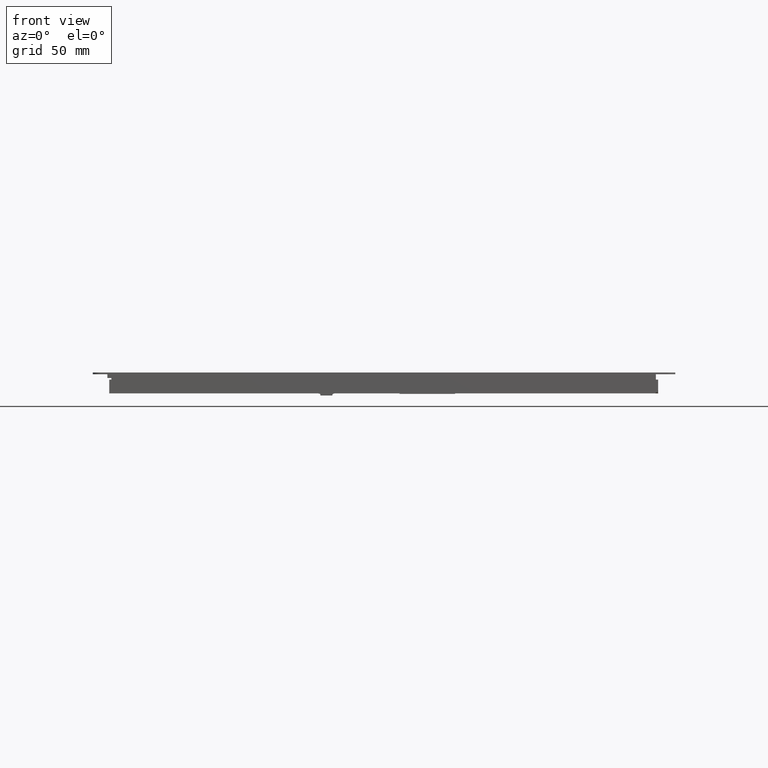
[diagram: clean part render]
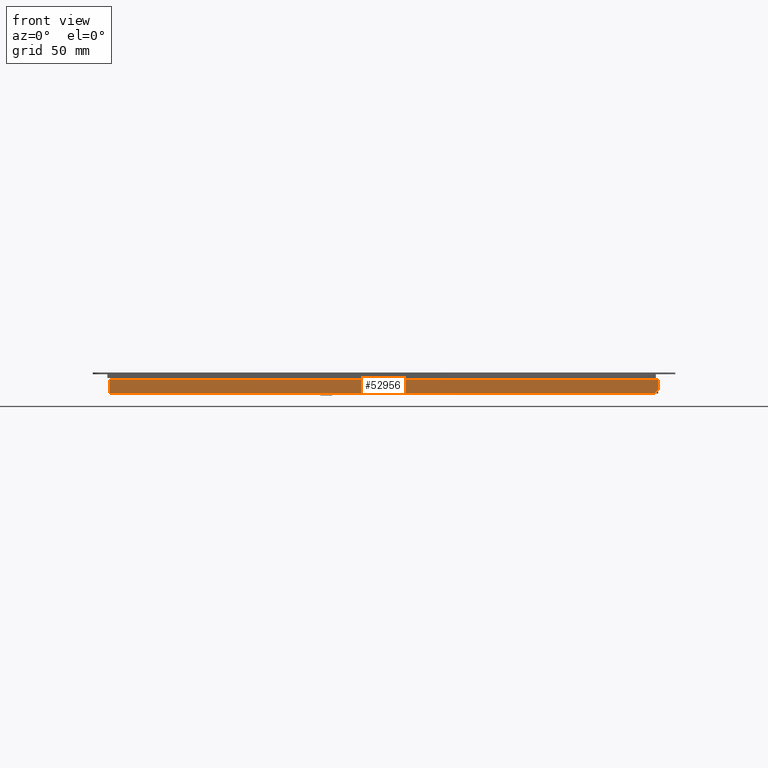
[diagram: same view with one face highlighted and labeled with its STEP entity id]
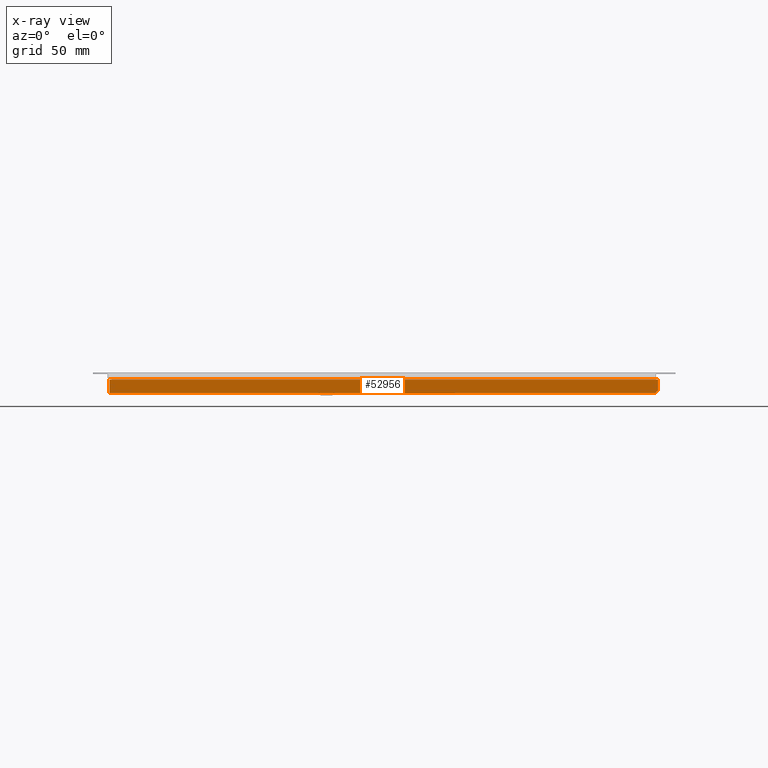
[diagram: x-ray of the same camera — body ghosted, the highlighted face saturated]
A machine part, front view. The second image highlights one B-rep face of the part: STEP entity #52956.
The next image is the same camera in x-ray: the body ghosted, the highlighted face saturated — about 0% of this face is hidden behind the body in this view.
In plain terms, the highlighted planar face has unit normal (-0, -1, 0).
Its self-contained STEP definition (entity closure, byte-faithful):
#1241=FACE_OUTER_BOUND('',#3964,.T.);
#3964=EDGE_LOOP('',(#37683,#37684,#37685,#37686,#37687));
#8660=LINE('',#76032,#15759);
#8661=LINE('',#76034,#15760);
#8662=LINE('',#76036,#15761);
#8663=LINE('',#76038,#15762);
#8664=LINE('',#76039,#15763);
#15759=VECTOR('',#61455,10.);
#15760=VECTOR('',#61456,10.);
#15761=VECTOR('',#61457,10.);
#15762=VECTOR('',#61458,10.);
#15763=VECTOR('',#61459,10.);
#22298=VERTEX_POINT('',#76030);
#22299=VERTEX_POINT('',#76031);
#22300=VERTEX_POINT('',#76033);
#22301=VERTEX_POINT('',#76035);
#22302=VERTEX_POINT('',#76037);
#28081=EDGE_CURVE('',#22298,#22299,#8660,.T.);
#28082=EDGE_CURVE('',#22300,#22298,#8661,.T.);
#28083=EDGE_CURVE('',#22300,#22301,#8662,.T.);
#28084=EDGE_CURVE('',#22301,#22302,#8663,.T.);
#28085=EDGE_CURVE('',#22299,#22302,#8664,.T.);
#37683=ORIENTED_EDGE('',*,*,#28081,.F.);
#37684=ORIENTED_EDGE('',*,*,#28082,.F.);
#37685=ORIENTED_EDGE('',*,*,#28083,.T.);
#37686=ORIENTED_EDGE('',*,*,#28084,.T.);
#37687=ORIENTED_EDGE('',*,*,#28085,.F.);
#50627=PLANE('',#55705);
#52956=ADVANCED_FACE('',(#1241),#50627,.T.);
#55705=AXIS2_PLACEMENT_3D('',#76029,#61453,#61454);
#61453=DIRECTION('center_axis',(-1.46483521665771E-16,-1.,0.));
#61454=DIRECTION('ref_axis',(-1.,1.46483521665771E-16,0.));
#61455=DIRECTION('',(-0.707106781186546,1.03579491501953E-16,-0.707106781186549));
#61456=DIRECTION('',(0.,0.,-1.));
#61457=DIRECTION('',(-1.,1.46483521665771E-16,0.));
#61458=DIRECTION('',(0.,0.,-1.));
#61459=DIRECTION('',(-1.,1.46483521665771E-16,0.));
#76029=CARTESIAN_POINT('Origin',(181.9,-107.95,-4.72));
#76030=CARTESIAN_POINT('',(181.9,-107.95,-11.79));
#76031=CARTESIAN_POINT('',(179.9,-107.95,-13.79));
#76032=CARTESIAN_POINT('',(183.1675,-107.95,-10.5225));
#76033=CARTESIAN_POINT('',(181.9,-107.95,-4.72));
#76034=CARTESIAN_POINT('',(181.9,-107.95,-4.72));
#76035=CARTESIAN_POINT('',(-181.9,-107.95,-4.72));
#76036=CARTESIAN_POINT('',(181.9,-107.95,-4.72));
#76037=CARTESIAN_POINT('',(-181.9,-107.95,-13.79));
#76038=CARTESIAN_POINT('',(-181.9,-107.95,-4.72));
#76039=CARTESIAN_POINT('',(181.9,-107.95,-13.79));